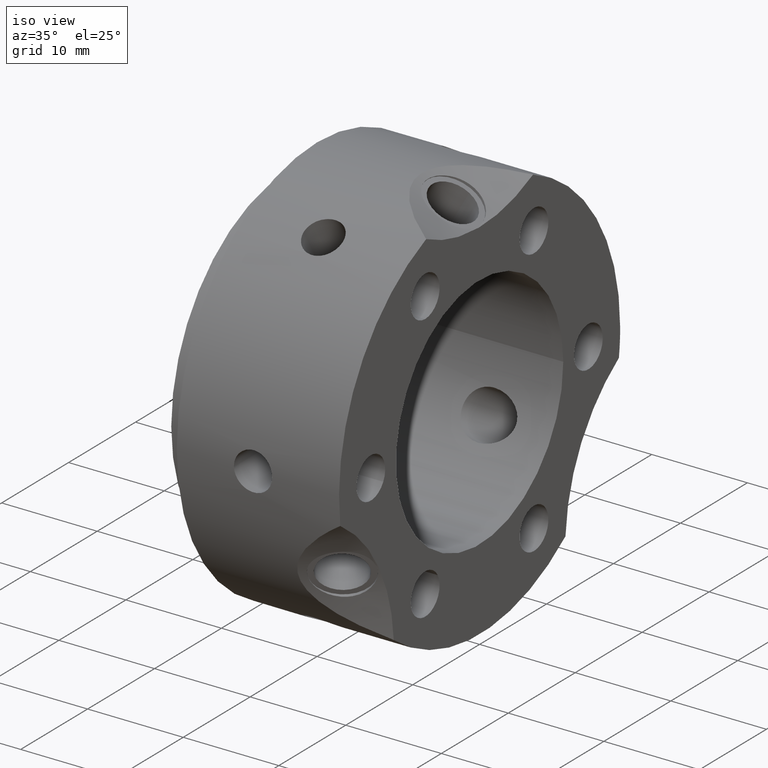
[diagram: clean part render]
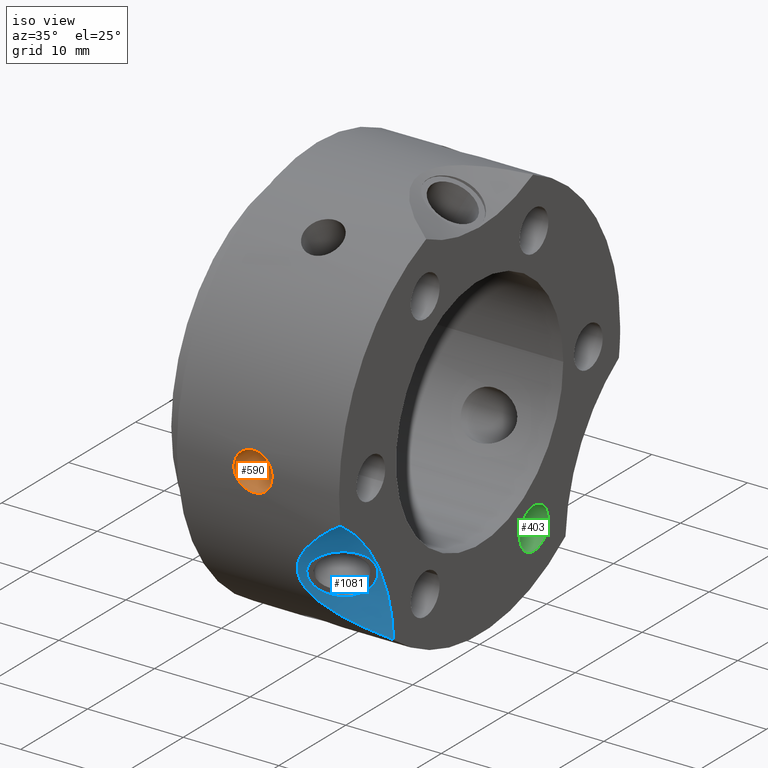
[diagram: same view with three faces highlighted in distinct colors, each labeled with its STEP entity id]
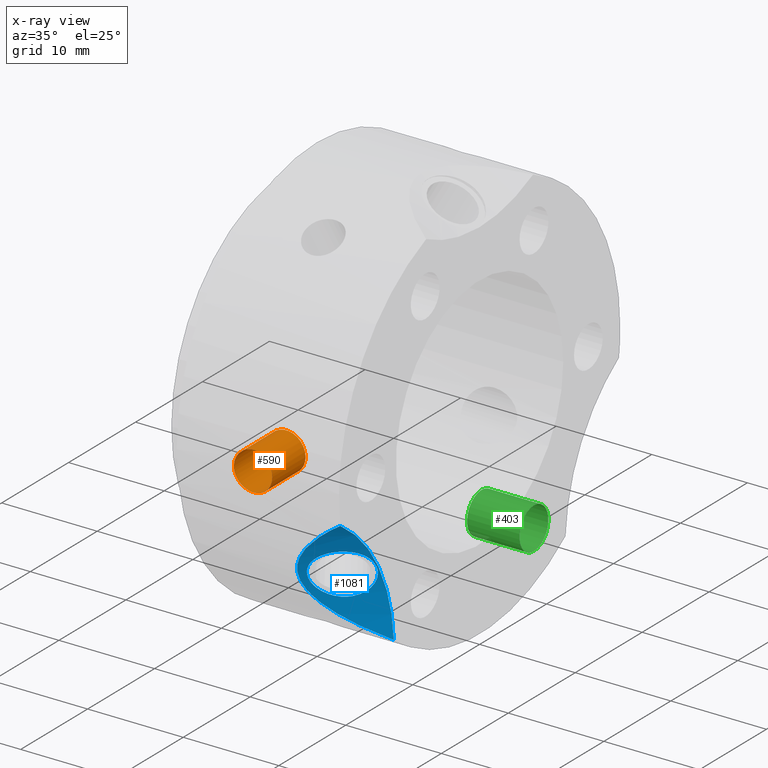
[diagram: x-ray of the same camera — body ghosted, the three highlighted faces saturated]
A machine part, iso view with three faces highlighted in distinct colors.
The next image is the same camera in x-ray (body ghosted, the three faces saturated) — at least one of them is partly hidden behind the body in this view.
Their STEP definitions:

[orange] entity #590 — the highlighted cylindrical surface (bore or boss wall) has radius 2 mm, axis along (0, -1, 0).
#521=CARTESIAN_POINT('',(13.0,-15.999999999999996,5.551115E-015));
#522=VERTEX_POINT('',#521);
#523=CARTESIAN_POINT('',(11.0,-15.999999999999996,5.551115E-015));
#524=DIRECTION('',(0.0,-1.0,0.0));
#525=DIRECTION('',(1.0,0.0,0.0));
#526=AXIS2_PLACEMENT_3D('',#523,#524,#525);
#527=CIRCLE('',#526,2.0);
#528=EDGE_CURVE('',#522,#522,#527,.T.);
#533=CARTESIAN_POINT('',(11.0,-18.499999999999996,7.771561E-015));
#534=DIRECTION('',(0.0,-1.0,2.775558E-016));
#535=DIRECTION('',(1.0,0.0,0.0));
#536=AXIS2_PLACEMENT_3D('',#533,#534,#535);
#537=CYLINDRICAL_SURFACE('',#536,2.0);
#538=CARTESIAN_POINT('',(9.000000000000002,-20.999999999999996,5.828671E-015));
#539=VERTEX_POINT('',#538);
#540=CARTESIAN_POINT('',(13.0,-20.999999999999996,7.771561E-015));
#541=VERTEX_POINT('',#540);
#542=CARTESIAN_POINT('',(9.000000000000002,-20.999999999999996,8.326673E-015));
#543=CARTESIAN_POINT('',(9.000000000000002,-20.999999999999996,0.25128759725416));
#544=CARTESIAN_POINT('',(9.050251048169601,-20.995027552702222,0.519221157494825));
#545=CARTESIAN_POINT('',(9.254405905243905,-20.977053170463677,1.011935192472379));
#546=CARTESIAN_POINT('',(9.408301305668548,-20.964306505913122,1.236728430414745));
#547=CARTESIAN_POINT('',(9.763272066160816,-20.940347140083571,1.591699190907013));
#548=CARTESIAN_POINT('',(9.988065085971467,-20.927575156146482,1.745594204362087));
#549=CARTESIAN_POINT('',(10.480778392240556,-20.909542816943073,1.949748771030897));
#550=CARTESIAN_POINT('',(10.74871169968258,-20.904544960366866,2.000000000000009));
#551=CARTESIAN_POINT('',(11.251288300317421,-20.904544960366866,2.000000000000009));
#552=CARTESIAN_POINT('',(11.519221607759446,-20.909542816943073,1.949748771030897));
#553=CARTESIAN_POINT('',(12.011934914028535,-20.927575156146482,1.745594204362087));
#554=CARTESIAN_POINT('',(12.236727933839187,-20.940347140083571,1.591699190907013));
#555=CARTESIAN_POINT('',(12.591698694331455,-20.964306505913122,1.236728430414746));
#556=CARTESIAN_POINT('',(12.745594094756097,-20.977053170463677,1.011935192472379));
#557=CARTESIAN_POINT('',(12.949748951830403,-20.995027552702222,0.519221157494825));
#558=CARTESIAN_POINT('',(13.0,-20.999999999999996,0.251287597254161));
#559=CARTESIAN_POINT('',(13.0,-20.999999999999996,9.159340E-015));
#560=B_SPLINE_CURVE_WITH_KNOTS('',3,(#542,#543,#544,#545,#546,#547,#548,#549,#550,#551,#552,#553,#554,#555,#556,#557,#558,#559),.UNSPECIFIED.,.F.,.U.,(4,2,2,2,2,2,2,2,4),(0.301545538542943,0.376931817719189,0.452318096895434,0.527704586990661,0.603091077085887,0.678477567181113,0.753864057276339,0.829250336452585,0.90463661562883),.UNSPECIFIED.);
#561=EDGE_CURVE('',#539,#541,#560,.T.);
#562=ORIENTED_EDGE('',*,*,#561,.F.);
#563=CARTESIAN_POINT('',(13.0,-20.999999999999996,8.604228E-015));
#564=CARTESIAN_POINT('',(13.0,-20.999999999999996,-0.251287597254143));
#565=CARTESIAN_POINT('',(12.949748951830403,-20.995027552702222,-0.519221157494807));
#566=CARTESIAN_POINT('',(12.745594094756097,-20.977053170463677,-1.011935192472361));
#567=CARTESIAN_POINT('',(12.591698694331455,-20.964306505913122,-1.236728430414728));
#568=CARTESIAN_POINT('',(12.236727933839187,-20.940347140083571,-1.591699190906995));
#569=CARTESIAN_POINT('',(12.011934914028533,-20.927575156146482,-1.745594204362071));
#570=CARTESIAN_POINT('',(11.519221607759446,-20.909542816943073,-1.94974877103088));
#571=CARTESIAN_POINT('',(11.251288300317421,-20.904544960366866,-1.999999999999992));
#572=CARTESIAN_POINT('',(11.0,-20.904544960366866,-1.999999999999992));
#573=CARTESIAN_POINT('',(10.74871169968258,-20.904544960366866,-1.999999999999992));
#574=CARTESIAN_POINT('',(10.480778392240556,-20.909542816943073,-1.94974877103088));
#575=CARTESIAN_POINT('',(9.988065085971469,-20.927575156146482,-1.745594204362071));
#576=CARTESIAN_POINT('',(9.763272066160816,-20.940347140083571,-1.591699190906996));
#577=CARTESIAN_POINT('',(9.408301305668548,-20.964306505913122,-1.236728430414729));
#578=CARTESIAN_POINT('',(9.254405905243907,-20.977053170463677,-1.011935192472362));
#579=CARTESIAN_POINT('',(9.050251048169603,-20.995027552702222,-0.519221157494808));
#580=CARTESIAN_POINT('',(9.000000000000002,-20.999999999999996,-0.251287597254143));
#581=CARTESIAN_POINT('',(9.000000000000002,-20.999999999999996,8.257284E-015));
#582=B_SPLINE_CURVE_WITH_KNOTS('',3,(#563,#564,#565,#566,#567,#568,#569,#570,#571,#572,#573,#574,#575,#576,#577,#578,#579,#580,#581),.UNSPECIFIED.,.F.,.U.,(4,2,2,2,3,2,2,2,4),(0.90463661562883,0.980022894805076,1.055409173981321,1.130795664076548,1.206182154171774,1.281568644267,1.356955134362226,1.432341413538472,1.507727692714717),.UNSPECIFIED.);
#583=EDGE_CURVE('',#541,#539,#582,.T.);
#584=ORIENTED_EDGE('',*,*,#583,.F.);
#585=EDGE_LOOP('',(#562,#584));
#586=FACE_OUTER_BOUND('',#585,.T.);
#587=ORIENTED_EDGE('',*,*,#528,.F.);
#588=EDGE_LOOP('',(#587));
#589=FACE_BOUND('',#588,.T.);
#590=ADVANCED_FACE('',(#586,#589),#537,.F.);

[blue] entity #1081 — the highlighted cylindrical surface (partial cylindrical patch) has radius 20 mm, axis along (-0.866, -0.433, -0.25).
#985=CARTESIAN_POINT('',(17.344687577113874,-15.192031365670793,-12.292960040563985));
#986=VERTEX_POINT('',#985);
#987=CARTESIAN_POINT('',(17.344687577113874,-15.192031365670793,-12.292960040563985));
#988=CARTESIAN_POINT('',(17.676905359906883,-15.025922474274287,-12.197057027401421));
#989=CARTESIAN_POINT('',(18.024745918145019,-14.878074481982537,-12.023030138167339));
#990=CARTESIAN_POINT('',(18.653211131740388,-14.675248896321984,-11.546299489104083));
#991=CARTESIAN_POINT('',(18.934211209749673,-14.62072802477894,-11.243896559974019));
#992=CARTESIAN_POINT('',(19.373322384377516,-14.612959179944083,-10.614815582399766));
#993=CARTESIAN_POINT('',(19.560932194206508,-14.65926128174727,-10.245988883186978));
#994=CARTESIAN_POINT('',(19.808681374720582,-14.867077700515551,-9.498464875882647));
#995=CARTESIAN_POINT('',(19.86909976465639,-15.0290922330702,-9.119999232908853));
#996=CARTESIAN_POINT('',(19.86909976465639,-15.412697134728763,-8.455576053203755));
#997=CARTESIAN_POINT('',(19.808681374720582,-15.659450729726359,-8.126034530742274));
#998=CARTESIAN_POINT('',(19.560932194206508,-16.202917300606508,-7.572298229113269));
#999=CARTESIAN_POINT('',(19.373322384377516,-16.499179540817153,-7.347786083096705));
#1000=CARTESIAN_POINT('',(18.934211209749673,-17.047864070851432,-7.039973611294622));
#1001=CARTESIAN_POINT('',(18.653211131740388,-17.337013125428417,-6.935988606522333));
#1002=CARTESIAN_POINT('',(18.024745918145019,-17.851286771110114,-6.873275391710201));
#1003=CARTESIAN_POINT('',(17.676905359906883,-18.075922474274286,-6.91430206431634));
#1004=CARTESIAN_POINT('',(17.012469794320864,-18.408140257067299,-7.106108090641465));
#1005=CARTESIAN_POINT('',(16.652307667473835,-18.537505896445712,-7.269464188445776));
#1006=CARTESIAN_POINT('',(15.979525445005025,-18.673855968796097,-7.707815182004888));
#1007=CARTESIAN_POINT('',(15.667190442940369,-18.681374454256087,-7.983081270877345));
#1008=CARTESIAN_POINT('',(15.169408168191879,-18.601136648909971,-8.561351585279139));
#1009=CARTESIAN_POINT('',(14.950623194073655,-18.508071800672941,-8.9031798002503));
#1010=CARTESIAN_POINT('',(14.658923527760683,-18.234329653206309,-9.612641570344119));
#1011=CARTESIAN_POINT('',(14.586344801571308,-18.054074616271304,-9.980576053203755));
#1012=CARTESIAN_POINT('',(14.586344801571304,-17.670469714612736,-10.64499923290885));
#1013=CARTESIAN_POINT('',(14.658923527760683,-17.441956623995509,-10.98507191548449));
#1014=CARTESIAN_POINT('',(14.950623194073655,-16.964415781813699,-11.576870454324006));
#1015=CARTESIAN_POINT('',(15.169408168191879,-16.714916288036903,-11.828381084582201));
#1016=CARTESIAN_POINT('',(15.667190442940369,-16.254238408183593,-12.187004219556741));
#1017=CARTESIAN_POINT('',(15.979525445005025,-16.012091739689666,-12.31812606458664));
#1018=CARTESIAN_POINT('',(16.652307667473835,-15.564293607318129,-12.419218934902913));
#1019=CARTESIAN_POINT('',(17.012469794320861,-15.358140257067296,-12.388863053726546));
#1020=CARTESIAN_POINT('',(17.34468757711387,-15.19203136567079,-12.292960040563985));
#1021=B_SPLINE_CURVE_WITH_KNOTS('',3,(#987,#988,#989,#990,#991,#992,#993,#994,#995,#996,#997,#998,#999,#1000,#1001,#1002,#1003,#1004,#1005,#1006,#1007,#1008,#1009,#1010,#1011,#1012,#1013,#1014,#1015,#1016,#1017,#1018,#1019,#1020),.UNSPECIFIED.,.T.,.U.,(4,2,2,2,2,2,2,2,2,2,2,2,2,2,2,2,4),(0.0,0.115083615795074,0.230167231590149,0.345248702087718,0.460330172585288,0.575411643082857,0.690493113580427,0.805576729375501,0.920660345170576,1.03574396096565,1.150827576760725,1.265909047258294,1.380990517755864,1.496071988253433,1.611153458751003,1.726237074546077,1.841320690341152),.UNSPECIFIED.);
#1022=EDGE_CURVE('',#986,#986,#1021,.T.);
#1039=CARTESIAN_POINT('',(23.321507575751177,-33.494690778352087,-19.338168737304841));
#1040=DIRECTION('',(-0.866025403784438,-0.43301270189222,-0.25));
#1041=DIRECTION('',(-0.5,0.75,0.433012701892219));
#1042=AXIS2_PLACEMENT_3D('',#1039,#1040,#1041);
#1043=CYLINDRICAL_SURFACE('',#1042,19.999999999999993);
#1044=CARTESIAN_POINT('',(19.999999999999989,-20.813366366872636,-2.793524740956287));
#1045=VERTEX_POINT('',#1044);
#1046=CARTESIAN_POINT('',(19.999999999999993,-12.825946575204814,-16.628141641506183));
#1047=VERTEX_POINT('',#1046);
#1048=CARTESIAN_POINT('',(19.999999999999996,-35.155444566227679,-20.297005383792506));
#1049=DIRECTION('',(-1.0,0.0,0.0));
#1050=DIRECTION('',(0.0,0.866025403784439,0.5));
#1051=AXIS2_PLACEMENT_3D('',#1048,#1049,#1050);
#1052=ELLIPSE('',#1051,23.094010767585026,19.999999999999993);
#1053=EDGE_CURVE('',#1045,#1047,#1052,.T.);
#1054=ORIENTED_EDGE('',*,*,#1053,.F.);
#1055=CARTESIAN_POINT('',(19.999999999999993,-12.825946575204812,-16.628141641506179));
#1056=CARTESIAN_POINT('',(19.242981110150318,-13.235233080712547,-16.312442691691423));
#1057=CARTESIAN_POINT('',(18.516763824993554,-13.652872808994726,-15.96667833108455));
#1058=CARTESIAN_POINT('',(16.857239610333128,-14.695790907494503,-15.023873186967515));
#1059=CARTESIAN_POINT('',(15.866621362706821,-15.399876509381228,-14.320556404916582));
#1060=CARTESIAN_POINT('',(14.768554613516734,-16.468760699492066,-13.041800672305593));
#1061=CARTESIAN_POINT('',(14.466634422991511,-16.827576454034396,-12.577831533607824));
#1062=CARTESIAN_POINT('',(14.051039733898376,-17.526652307428748,-11.583852310964298));
#1063=CARTESIAN_POINT('',(13.937822173508929,-17.866891341232272,-11.053636423673264));
#1064=CARTESIAN_POINT('',(13.937822173508929,-18.506175617714156,-9.946363576326725));
#1065=CARTESIAN_POINT('',(14.051039733898381,-18.795236528696538,-9.386599986048283));
#1066=CARTESIAN_POINT('',(14.466634422991515,-19.306509859642563,-8.284192926514729));
#1067=CARTESIAN_POINT('',(14.768554613516734,-19.528911043055651,-7.741464798454103));
#1068=CARTESIAN_POINT('',(15.866621362706821,-20.10190389767633,-6.176406069809064));
#1069=CARTESIAN_POINT('',(16.857239610333131,-20.358951296896997,-5.214991661110837));
#1070=CARTESIAN_POINT('',(18.516763824993557,-20.653985453271105,-3.84039552168495));
#1071=CARTESIAN_POINT('',(19.242981110150314,-20.744606309138852,-3.305826727059525));
#1072=CARTESIAN_POINT('',(19.999999999999989,-20.813366366872632,-2.793524740956288));
#1073=B_SPLINE_CURVE_WITH_KNOTS('',3,(#1055,#1056,#1057,#1058,#1059,#1060,#1061,#1062,#1063,#1064,#1065,#1066,#1067,#1068,#1069,#1070,#1071,#1072),.UNSPECIFIED.,.F.,.U.,(4,2,2,2,2,2,2,2,4),(2.052412130844741,2.321338483499798,2.70490904938893,2.896694332333496,3.088479615278062,3.280264898222629,3.472050181167194,3.855620747056326,4.124547099711383),.UNSPECIFIED.);
#1074=EDGE_CURVE('',#1047,#1045,#1073,.T.);
#1075=ORIENTED_EDGE('',*,*,#1074,.F.);
#1076=EDGE_LOOP('',(#1054,#1075));
#1077=FACE_OUTER_BOUND('',#1076,.T.);
#1078=ORIENTED_EDGE('',*,*,#1022,.F.);
#1079=EDGE_LOOP('',(#1078));
#1080=FACE_BOUND('',#1079,.T.);
#1081=ADVANCED_FACE('',(#1077,#1080),#1043,.F.);

[green] entity #403 — the highlighted cylindrical surface (bore or boss wall) has radius 2.15 mm, axis along (1, 0, 0).
#372=CARTESIAN_POINT('',(14.499999999999995,8.125000000000004,-11.922912811497127));
#373=VERTEX_POINT('',#372);
#374=CARTESIAN_POINT('',(14.499999999999995,8.125000000000004,-14.07291281149713));
#375=DIRECTION('',(1.0,0.0,0.0));
#376=DIRECTION('',(0.0,0.0,1.0));
#377=AXIS2_PLACEMENT_3D('',#374,#375,#376);
#378=CIRCLE('',#377,2.15);
#379=EDGE_CURVE('',#373,#373,#378,.T.);
#384=CARTESIAN_POINT('',(17.249999999999996,8.125000000000004,-14.07291281149713));
#385=DIRECTION('',(1.0,0.0,0.0));
#386=DIRECTION('',(0.0,0.0,1.0));
#387=AXIS2_PLACEMENT_3D('',#384,#385,#386);
#388=CYLINDRICAL_SURFACE('',#387,2.15);
#389=CARTESIAN_POINT('',(19.999999999999996,8.125000000000004,-11.922912811497127));
#390=VERTEX_POINT('',#389);
#391=CARTESIAN_POINT('',(19.999999999999996,8.125000000000004,-14.07291281149713));
#392=DIRECTION('',(-1.0,0.0,0.0));
#393=DIRECTION('',(0.0,0.0,1.0));
#394=AXIS2_PLACEMENT_3D('',#391,#392,#393);
#395=CIRCLE('',#394,2.15);
#396=EDGE_CURVE('',#390,#390,#395,.T.);
#397=ORIENTED_EDGE('',*,*,#396,.F.);
#398=EDGE_LOOP('',(#397));
#399=FACE_OUTER_BOUND('',#398,.T.);
#400=ORIENTED_EDGE('',*,*,#379,.F.);
#401=EDGE_LOOP('',(#400));
#402=FACE_BOUND('',#401,.T.);
#403=ADVANCED_FACE('',(#399,#402),#388,.F.);